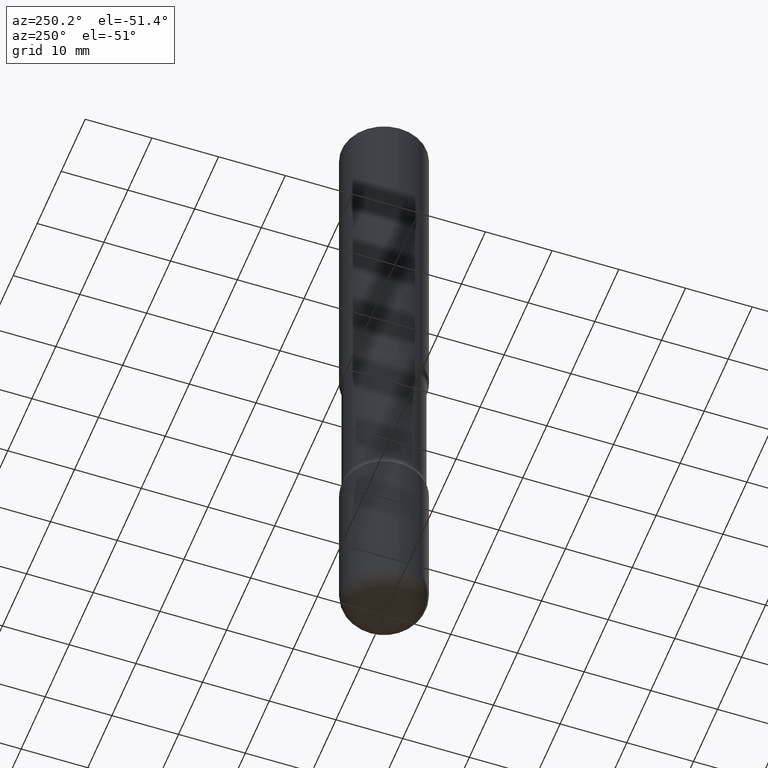
[diagram: clean part render]
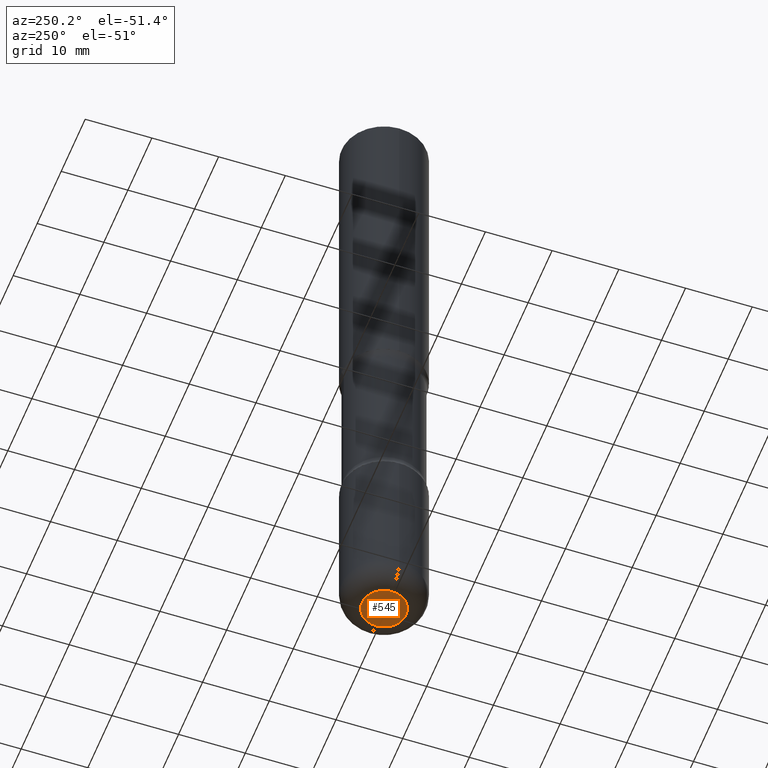
[diagram: same view with one face highlighted and labeled with its STEP entity id]
A machine part, auxiliary view. The second image highlights one B-rep face of the part: STEP entity #545.
In plain terms, the highlighted planar face has unit normal (0, -0, -1).
Its self-contained STEP definition (entity closure, byte-faithful):
#9 = ORIENTED_EDGE ( 'NONE', *, *, #277, .F. ) ;
#57 = EDGE_CURVE ( 'NONE', #145, #500, #501, .T. ) ;
#59 = ORIENTED_EDGE ( 'NONE', *, *, #57, .F. ) ;
#85 = AXIS2_PLACEMENT_3D ( 'NONE', #310, #445, #405 ) ;
#90 = CARTESIAN_POINT ( 'NONE',  ( 9.781875224740547508E-29, -1.396592535537258391E-14, -4.000000000000000888 ) ) ;
#145 = VERTEX_POINT ( 'NONE', #362 ) ;
#176 = CIRCLE ( 'NONE', #440, 0.1300000000000003375 ) ;
#236 = AXIS2_PLACEMENT_3D ( 'NONE', #90, #444, #532 ) ;
#246 = DIRECTION ( 'NONE',  ( 1.000000000000000000, -6.982962677686269077E-15, 0.000000000000000000 ) ) ;
#277 = EDGE_CURVE ( 'NONE', #500, #145, #176, .T. ) ;
#310 = CARTESIAN_POINT ( 'NONE',  ( -1.957443286563838823E-29, -3.077729762407571596E-14, -4.000000000000000000 ) ) ;
#313 = PLANE ( 'NONE',  #85 ) ;
#335 = DIRECTION ( 'NONE',  ( -2.445468806185136597E-29, 3.491481338843145583E-15, 1.000000000000000000 ) ) ;
#362 = CARTESIAN_POINT ( 'NONE',  ( -0.1300000000000003375, -1.240640527709780404E-14, -4.000000000000000888 ) ) ;
#369 = CARTESIAN_POINT ( 'NONE',  ( 9.781875224740547508E-29, -1.396592535537258391E-14, -4.000000000000000888 ) ) ;
#405 = DIRECTION ( 'NONE',  ( -1.000000000000000000, 6.982962677686265922E-15, -4.876176775795935793E-29 ) ) ;
#430 = CARTESIAN_POINT ( 'NONE',  ( 0.1300000000000003375, -1.487371050347180047E-14, -4.000000000000000888 ) ) ;
#440 = AXIS2_PLACEMENT_3D ( 'NONE', #369, #335, #246 ) ;
#444 = DIRECTION ( 'NONE',  ( -2.445468806185136597E-29, 3.491481338843145583E-15, 1.000000000000000000 ) ) ;
#445 = DIRECTION ( 'NONE',  ( 2.438088387897960049E-29, -3.491481338843145188E-15, -1.000000000000000000 ) ) ;
#494 = FACE_OUTER_BOUND ( 'NONE', #525, .T. ) ;
#500 = VERTEX_POINT ( 'NONE', #430 ) ;
#501 = CIRCLE ( 'NONE', #236, 0.1300000000000003375 ) ;
#525 = EDGE_LOOP ( 'NONE', ( #9, #59 ) ) ;
#532 = DIRECTION ( 'NONE',  ( 1.000000000000000000, -6.982962677686269077E-15, 0.000000000000000000 ) ) ;
#545 = ADVANCED_FACE ( 'NONE', ( #494 ), #313, .T. ) ;